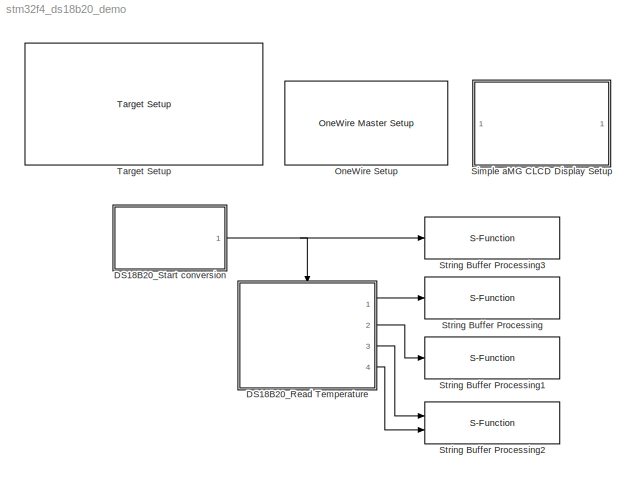
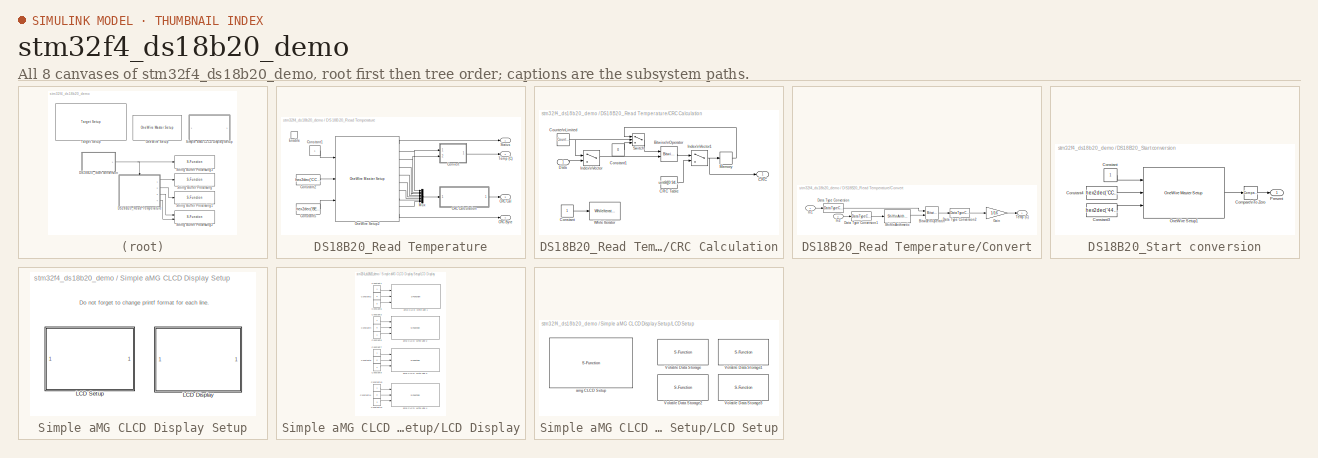
[diagram: thumbnail index - all 8 canvases of the model, root first then tree order]
MODEL stm32f4_ds18b20_demo
KIND model
CONFIG PreLoadFcn = waijung.modelPreload; % Required for working with Waijung Blockset. Do not remove.
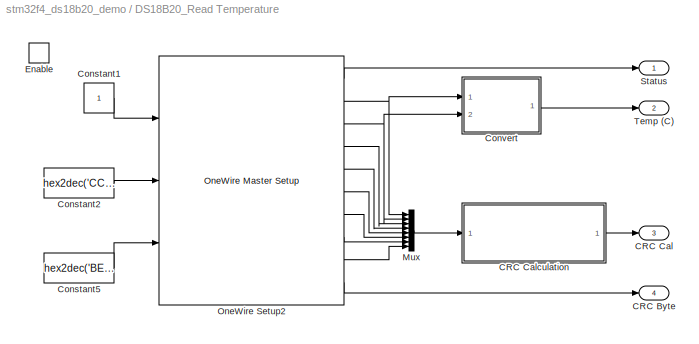
BLOCK [SubSystem] DS18B20_Read Temperature
  FunctionWithSeparateData = off
  MaskHideContents = off
  MinAlgLoopOccurrences = off
  Opaque = off
  Ports = [0, 4, 1]
  PropExecContextOutsideSubsystem = off
  RTWSystemCode = Auto
  RequestExecContextInheritance = off
BLOCK [Outport] DS18B20_Read Temperature/CRC Byte
  IconDisplay = Port number
  Port = 4
BLOCK [Outport] DS18B20_Read Temperature/CRC Cal
  IconDisplay = Port number
  Port = 3
BLOCK [SubSystem] DS18B20_Read Temperature/CRC Calculation
  FunctionWithSeparateData = off
  MaskHideContents = off
  MinAlgLoopOccurrences = off
  Opaque = off
  Ports = [1, 1]
  PropExecContextOutsideSubsystem = off
  RTWSystemCode = Auto
  RequestExecContextInheritance = off
  TreatAsAtomicUnit = on
BLOCK [Reference] DS18B20_Read Temperature/CRC Calculation/Bitwise\nOperator  REF=simulink/Logic and Bit\nOperations/Bitwise\nOperator
  BitMask = bin2dec('11011001')
  BitMaskRealWorld = Stored Integer
  NumInputPorts = 2
  Ports = [2, 1]
  SourceBlock = simulink/Logic and Bit\nOperations/Bitwise\nOperator
  SourceType = Bitwise Operator
  UseBitMask = off
  logicop = XOR
BLOCK [Outport] DS18B20_Read Temperature/CRC Calculation/CRC
  IconDisplay = Port number
  OutDataType = fixdt(1, 16)
  OutScaling = 2^0
BLOCK [Constant] DS18B20_Read Temperature/CRC Calculation/CRC Table
  OutDataType = fixdt(1, 16)
  OutScaling = 2^0
  Value = uint8([0 94 188 226 97 63 221 131 194 156 126 32 163 253 31 65 157 195 33 127 252 162 64 30 95 1 227 189 62 96 130 220 35 125 159 193 66 28 254 160 225 191 93 3 128 222 60 98 190 224 2 92 223 129 99 61 124 34 192 158 29 67 161 255 70 24 250 164 39 121 155 197 132 218 56 102 229 187 89 7 219 133 103 57 186 228 6 88 25 71 165 251 120 38 196 154 101 59 217 135 4 90 184 230 167 249 27 69 198 152 122 3...<+522ch>
BLOCK [Constant] DS18B20_Read Temperature/CRC Calculation/Constant
  OutDataType = fixdt(1, 16)
  OutScaling = 2^0
BLOCK [Constant] DS18B20_Read Temperature/CRC Calculation/Constant1
  OutDataType = fixdt(1, 16)
  OutDataTypeMode = uint8
  OutDataTypeStr = uint8
  OutScaling = 2^0
  Value = 0
BLOCK [Reference] DS18B20_Read Temperature/CRC Calculation/Counter\nLimited  REF=simulink/Sources/Counter\nLimited
  FunctionWithSeparateData = off
  Ports = [0, 1]
  RTWMemSecDataConstants = Inherit from model
  RTWMemSecDataInternal = Inherit from model
  RTWMemSecDataParameters = Inherit from model
  RTWMemSecFuncExecute = Inherit from model
  RTWMemSecFuncInitTerm = Inherit from model
  ShowPortLabels = FromPortIcon
  SourceBlock = simulink/Sources/Counter\nLimited
  SourceType = Counter Limited
  SystemSampleTime = -1
  tsamp = -1
  uplimit = 7
BLOCK [Inport] DS18B20_Read Temperature/CRC Calculation/Data
  IconDisplay = Port number
  OutDataType = fixdt(1, 16)
  OutScaling = 2^0
BLOCK [MultiPortSwitch] DS18B20_Read Temperature/CRC Calculation/Index\nVector
  InputSameDT = off
  Inputs = 1
  OutDataType = fixdt(1, 16)
  OutScaling = 2^0
  Ports = [2, 1]
  SaturateOnIntegerOverflow = off
  zeroidx = on
BLOCK [MultiPortSwitch] DS18B20_Read Temperature/CRC Calculation/Index\nVector1
  InputSameDT = off
  Inputs = 1
  OutDataType = fixdt(1, 16)
  OutScaling = 2^0
  Ports = [2, 1]
  SaturateOnIntegerOverflow = off
  zeroidx = on
BLOCK [Memory] DS18B20_Read Temperature/CRC Calculation/Memory
  InheritSampleTime = on
  LinearizeMemory = on
BLOCK [Switch] DS18B20_Read Temperature/CRC Calculation/Switch
  Criteria = u2 ~= 0
  InputSameDT = off
  OutDataType = fixdt(1, 16)
  OutScaling = 2^0
  SaturateOnIntegerOverflow = off
BLOCK [WhileIterator] DS18B20_Read Temperature/CRC Calculation/While Iterator
  MaxIters = 8
  Ports = [1]
  WhileBlockType = do-while
BLOCK [Constant] DS18B20_Read Temperature/Constant1
  OutDataType = fixdt(1, 16)
  OutScaling = 2^0
BLOCK [Constant] DS18B20_Read Temperature/Constant2
  OutDataType = fixdt(1, 16)
  OutDataTypeMode = uint8
  OutDataTypeStr = uint8
  OutScaling = 2^0
  Value = hex2dec('CC')
BLOCK [Constant] DS18B20_Read Temperature/Constant5
  OutDataType = fixdt(1, 16)
  OutDataTypeMode = uint8
  OutDataTypeStr = uint8
  OutScaling = 2^0
  Value = hex2dec('BE')
BLOCK [SubSystem] DS18B20_Read Temperature/Convert
  FunctionWithSeparateData = off
  MaskHideContents = off
  MinAlgLoopOccurrences = off
  Opaque = off
  Ports = [2, 1]
  PropExecContextOutsideSubsystem = off
  RTWSystemCode = Auto
  RequestExecContextInheritance = off
BLOCK [Reference] DS18B20_Read Temperature/Convert/Bitwise\nOperator  REF=simulink/Logic and Bit\nOperations/Bitwise\nOperator
  BitMask = bin2dec('11011001')
  BitMaskRealWorld = Stored Integer
  NumInputPorts = 2
  Ports = [2, 1]
  SourceBlock = simulink/Logic and Bit\nOperations/Bitwise\nOperator
  SourceType = Bitwise Operator
  UseBitMask = off
  logicop = OR
BLOCK [DataTypeConversion] DS18B20_Read Temperature/Convert/Data Type Conversion
  OutDataType = fixdt(1, 16)
  OutDataTypeMode = uint16
  OutDataTypeStr = uint16
  OutScaling = 2^0
  RndMeth = Floor
  SaturateOnIntegerOverflow = off
BLOCK [DataTypeConversion] DS18B20_Read Temperature/Convert/Data Type Conversion1
  OutDataType = fixdt(1, 16)
  OutDataTypeMode = uint16
  OutDataTypeStr = uint16
  OutScaling = 2^0
  RndMeth = Floor
  SaturateOnIntegerOverflow = off
BLOCK [DataTypeConversion] DS18B20_Read Temperature/Convert/Data Type Conversion2
  OutDataType = fixdt(1, 16)
  OutDataTypeMode = int16
  OutDataTypeStr = int16
  OutScaling = 2^0
  RndMeth = Floor
  SaturateOnIntegerOverflow = off
BLOCK [Gain] DS18B20_Read Temperature/Convert/Gain
  Gain = 1/16
  OutDataType = fixdt(1, 16)
  OutDataTypeMode = single
  OutDataTypeStr = single
  OutScaling = 2^0
  ParamDataTypeStr = Inherit: Inherit via internal rule
  ParameterDataType = fixdt(1, 16)
  ParameterDataTypeMode = Inherit via internal rule
  ParameterScaling = 2^0
  SaturateOnIntegerOverflow = off
BLOCK [Inport] DS18B20_Read Temperature/Convert/In1
  IconDisplay = Port number
BLOCK [Inport] DS18B20_Read Temperature/Convert/In2
  IconDisplay = Port number
  Port = 2
BLOCK [Reference] DS18B20_Read Temperature/Convert/Shift\nArithmetic  REF=simulink/Logic and Bit\nOperations/Shift\nArithmetic
  FunctionWithSeparateData = off
  Ports = [1, 1]
  RTWMemSecDataConstants = Inherit from model
  RTWMemSecDataInternal = Inherit from model
  RTWMemSecDataParameters = Inherit from model
  RTWMemSecFuncExecute = Inherit from model
  RTWMemSecFuncInitTerm = Inherit from model
  ShowPortLabels = FromPortIcon
  SourceBlock = simulink/Logic and Bit\nOperations/Shift\nArithmetic
  SourceType = Shift Arithmetic
  SystemSampleTime = -1
  nBinPtShiftRight = 0
  nBitShiftRight = -8
BLOCK [Outport] DS18B20_Read Temperature/Convert/Temp (C)
  IconDisplay = Port number
BLOCK [EnablePort] DS18B20_Read Temperature/Enable
  Ports = []
BLOCK [Mux] DS18B20_Read Temperature/Mux
  DisplayOption = bar
  Inputs = 8
  Ports = [8, 1]
BLOCK [Reference] DS18B20_Read Temperature/OneWire Setup2  REF=waijung_onewirebus_lib/OneWire Master Setup
  Ports = [3, 10]
  Priority = 1
  SourceBlock = waijung_onewirebus_lib/OneWire Master Setup
  SourceType = waijung_onewirebus
  blockid = DS18B20_ReadTemperatureOneWireSetup2
  compat = 0
  conf = ReadWrite
  inputportlabel = {'BusReset' 'Wr0 (uint8)' 'Wr1 (uint8)'}
  inputporttype = [-1 3 3]
  inputportwidth = []
  lowtime = 6
  module = 1
  optionstring = [\"1\",\"Custom\",\"90\",\"10\",\"6\",\"9\",\"640\",\"640\",\"A\",\"8\"]
  outputportlabel = {'Status' '(uint8) Rd0' '(uint8) Rd1' '(uint8) Rd2' '(uint8) Rd3' '(uint8) Rd4' '(uint8) Rd5' '(uint8) Rd6' '(uint8) Rd7' '(uint8) Rd8'}
  outputporttype = [3 3 3 3 3 3 3 3 3 3]
  outputportwidth = []
  pin = 8
  port = A
  portpinstr = 0
  readcount = 9
  readsample = 9
  resethigh = 640
  resetlow = 640
  sampletime = 0.2
  speed = Custom
  timerecovery = 10
  timeslot = 90
  transfer = Blocking
  writecount = 2
BLOCK [Outport] DS18B20_Read Temperature/Status
  IconDisplay = Port number
BLOCK [Outport] DS18B20_Read Temperature/Temp (C)
  IconDisplay = Port number
  Port = 2
BLOCK [SubSystem] DS18B20_Start conversion
  FunctionWithSeparateData = off
  MaskHideContents = off
  MinAlgLoopOccurrences = off
  Opaque = off
  Ports = [0, 1]
  PropExecContextOutsideSubsystem = off
  RTWSystemCode = Auto
  RequestExecContextInheritance = off
BLOCK [Reference] DS18B20_Start conversion/Compare\nTo Zero  REF=simulink/Logic and Bit\nOperations/Compare\nTo Zero
  FunctionWithSeparateData = off
  LogicOutDataTypeMode = uint8
  Ports = [1, 1]
  RTWMemSecDataConstants = Inherit from model
  RTWMemSecDataInternal = Inherit from model
  RTWMemSecDataParameters = Inherit from model
  RTWMemSecFuncExecute = Inherit from model
  RTWMemSecFuncInitTerm = Inherit from model
  ShowPortLabels = FromPortIcon
  SourceBlock = simulink/Logic and Bit\nOperations/Compare\nTo Zero
  SourceType = Compare To Zero
  SystemSampleTime = -1
  ZeroCross = off
  relop = ==
BLOCK [Constant] DS18B20_Start conversion/Constant
  OutDataType = fixdt(1, 16)
  OutScaling = 2^0
BLOCK [Constant] DS18B20_Start conversion/Constant3
  OutDataType = fixdt(1, 16)
  OutDataTypeMode = uint8
  OutDataTypeStr = uint8
  OutScaling = 2^0
  Value = hex2dec('44')
BLOCK [Constant] DS18B20_Start conversion/Constant4
  OutDataType = fixdt(1, 16)
  OutDataTypeMode = uint8
  OutDataTypeStr = uint8
  OutScaling = 2^0
  Value = hex2dec('CC')
BLOCK [Reference] DS18B20_Start conversion/OneWire Setup1  REF=waijung_onewirebus_lib/OneWire Master Setup
  Ports = [3, 1]
  Priority = 0
  SourceBlock = waijung_onewirebus_lib/OneWire Master Setup
  SourceType = waijung_onewirebus
  blockid = DS18B20_StartconversionOneWireSetup1
  compat = 0
  conf = ReadWrite
  inputportlabel = {'BusReset' 'Wr0 (uint8)' 'Wr1 (uint8)'}
  inputporttype = [-1 3 3]
  inputportwidth = []
  lowtime = 6
  module = 1
  optionstring = [\"1\",\"Custom\",\"90\",\"10\",\"6\",\"9\",\"640\",\"640\",\"A\",\"8\"]
  outputportlabel = {'Status'}
  outputporttype = [3]
  outputportwidth = []
  pin = 8
  port = A
  portpinstr = 0
  readcount = 0
  readsample = 9
  resethigh = 640
  resetlow = 640
  sampletime = 0.2
  speed = Custom
  timerecovery = 10
  timeslot = 90
  transfer = Blocking
  writecount = 2
BLOCK [Outport] DS18B20_Start conversion/Present
  IconDisplay = Port number
BLOCK [Reference] OneWire Setup  REF=waijung_onewirebus_lib/OneWire Master Setup
  Ports = []
  SourceBlock = waijung_onewirebus_lib/OneWire Master Setup
  SourceType = waijung_onewirebus
  blockid = OneWireSetup
  compat = 0
  conf = Setup
  inputportlabel = {}
  inputporttype = []
  inputportwidth = []
  lowtime = 6
  module = 1
  optionstring = [\"1\",\"Custom\",\"60\",\"10\",\"6\",\"9\",\"600\",\"600\",\"A\",\"8\"]
  outputportlabel = {}
  outputporttype = []
  outputportwidth = []
  pin = 8
  port = A
  portpinstr = 0
  readcount = 2
  readsample = 9
  resethigh = 600
  resetlow = 600
  sampletime = inf
  speed = Custom
  timerecovery = 10
  timeslot = 60
  transfer = Blocking
  writecount = 2
BLOCK [SubSystem] Simple aMG CLCD Display Setup
  CopyFcn = set_param(gcbh, 'LinkStatus', 'none')
  FunctionWithSeparateData = off
  MaskHideContents = off
  MinAlgLoopOccurrences = off
  Opaque = off
  Ports = []
  PropExecContextOutsideSubsystem = off
  RTWSystemCode = Auto
  RequestExecContextInheritance = off
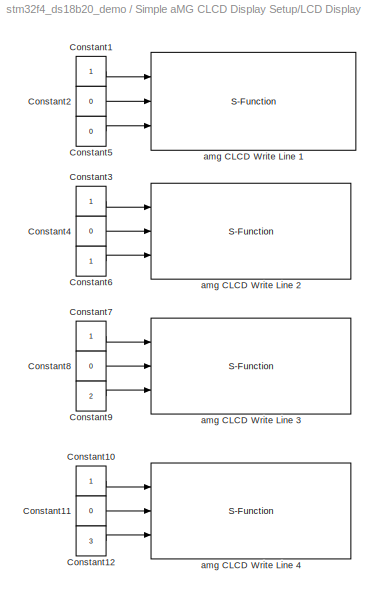
BLOCK [SubSystem] Simple aMG CLCD Display Setup/LCD Display
  FunctionWithSeparateData = off
  MaskHideContents = off
  MinAlgLoopOccurrences = off
  Opaque = off
  Ports = []
  PropExecContextOutsideSubsystem = off
  RTWSystemCode = Auto
  RequestExecContextInheritance = off
BLOCK [Constant] Simple aMG CLCD Display Setup/LCD Display/Constant1
  OutDataType = fixdt(1, 16)
  OutDataTypeMode = uint8
  OutDataTypeStr = uint8
  OutScaling = 2^0
BLOCK [Constant] Simple aMG CLCD Display Setup/LCD Display/Constant10
  OutDataType = fixdt(1, 16)
  OutDataTypeMode = uint8
  OutDataTypeStr = uint8
  OutScaling = 2^0
BLOCK [Constant] Simple aMG CLCD Display Setup/LCD Display/Constant11
  OutDataType = fixdt(1, 16)
  OutDataTypeMode = uint8
  OutDataTypeStr = uint8
  OutScaling = 2^0
  Value = 0
BLOCK [Constant] Simple aMG CLCD Display Setup/LCD Display/Constant12
  OutDataType = fixdt(1, 16)
  OutDataTypeMode = uint8
  OutDataTypeStr = uint8
  OutScaling = 2^0
  Value = 3
BLOCK [Constant] Simple aMG CLCD Display Setup/LCD Display/Constant2
  OutDataType = fixdt(1, 16)
  OutDataTypeMode = uint8
  OutDataTypeStr = uint8
  OutScaling = 2^0
  Value = 0
BLOCK [Constant] Simple aMG CLCD Display Setup/LCD Display/Constant3
  OutDataType = fixdt(1, 16)
  OutDataTypeMode = uint8
  OutDataTypeStr = uint8
  OutScaling = 2^0
BLOCK [Constant] Simple aMG CLCD Display Setup/LCD Display/Constant4
  OutDataType = fixdt(1, 16)
  OutDataTypeMode = uint8
  OutDataTypeStr = uint8
  OutScaling = 2^0
  Value = 0
BLOCK [Constant] Simple aMG CLCD Display Setup/LCD Display/Constant5
  OutDataType = fixdt(1, 16)
  OutDataTypeMode = uint8
  OutDataTypeStr = uint8
  OutScaling = 2^0
  Value = 0
BLOCK [Constant] Simple aMG CLCD Display Setup/LCD Display/Constant6
  OutDataType = fixdt(1, 16)
  OutDataTypeMode = uint8
  OutDataTypeStr = uint8
  OutScaling = 2^0
BLOCK [Constant] Simple aMG CLCD Display Setup/LCD Display/Constant7
  OutDataType = fixdt(1, 16)
  OutDataTypeMode = uint8
  OutDataTypeStr = uint8
  OutScaling = 2^0
BLOCK [Constant] Simple aMG CLCD Display Setup/LCD Display/Constant8
  OutDataType = fixdt(1, 16)
  OutDataTypeMode = uint8
  OutDataTypeStr = uint8
  OutScaling = 2^0
  Value = 0
BLOCK [Constant] Simple aMG CLCD Display Setup/LCD Display/Constant9
  OutDataType = fixdt(1, 16)
  OutDataTypeMode = uint8
  OutDataTypeStr = uint8
  OutScaling = 2^0
  Value = 2
BLOCK [S-Function] Simple aMG CLCD Display Setup/LCD Display/amg CLCD Write Line 1
  EnableBusSupport = off
  FunctionName = amg_clcd
  MaskCallbackString = amg_clcd_callback('configuration');||||||||||||||||amg_clcd_callback('usestringbuffer');||amg_clcd_callback('varname');|||amg_clcd_callback('confstr');|amg_clcd_callback('sampletime');|amg_clcd_callback('sampletimestr');|amg_clcd_callback('blockid');  <repeated x5 — deduplicated; at blocks: amg CLCD Write Line 1, amg CLCD Write Line 2, amg CLCD Write Line 3, amg CLCD Write Line 4, amg CLCD Setup>
  MaskDescription = Note for cmd:\n1 - Clear LCD Line before write.\n0 or otherwise - Write into LCD Line with existing data.\n
  MaskDisplay = text(0.5, 0.5, 'Module: CLCD1 (Write)\\nBuffer: Line1\\nTs (sec): 0.05','ver','middle','hor','center');port_label('input', 1,'cmd');port_label('input', 2,'xpos');port_label('input', 3,'ypos');
  MaskEnableString = on,on,on,off,off,on,on,on,on,on,on,on,on,on,on,on,on,on,off,off,off,on,on,on,on
  MaskHelp = web(fullfile(waijungdocroot,'amg_clcd_write.htm'), '-browser')
  MaskIconFrame = on
  MaskIconOpaque = on
  MaskIconRotate = none
  MaskIconUnits = normalized
  MaskInitialization = amg_clcd_callback('init');
  MaskPortRotate = default
  MaskPromptString = Configuration:|Module:|LCD model:|Interface:|Number of lines:|Number of columns:|GPIO Pull-Up/Down:|GPIO control port:|GPIO control pin, RS:|GPIO control pin, EN:|GPIO control pin, RW:|GPIO data D[7:4] port|GPIO data pin, D4:|GPIO data pin, D5:|GPIO data pin, D6:|GPIO data pin, D7:|Use string buffer|String buffer|Variable name|Input type array|Output type array|Configuration string|Sample time (se...<+47ch>  <repeated x4 — deduplicated; at blocks: amg CLCD Write Line 1, amg CLCD Write Line 2, amg CLCD Write Line 3, amg CLCD Write Line 4>
  MaskSelfModifiable = on
  MaskStyleString = popup(Setup|Transaction),popup(1|2|3|4),popup(amg CLCD Std),popup(4-bits),edit,edit,popup(Push-pull|Open-drain),popup(A|B|C|D|E|F|G|H|I),popup(0|1|2|3|4|5|6|7|8|9|10|11|12|13|14|15),popup(0|1|2|3|4|5|6|7|8|9|10|11|12|13|14|15),popup(0|1|2|3|4|5|6|7|8|9|10|11|12|13|14|15),popup(A|B|C|D|E|F|G|H|I),popup(0|1|2|3|4|5|6|7|8|9|10|11|12|13|14|15),popup(0|1|2|3|4|5|6|7|8|9|10|11|12|13|14|15),popup(0|1|2|3...<+151ch>  <repeated x5 — deduplicated; at blocks: amg CLCD Write Line 1, amg CLCD Write Line 2, amg CLCD Write Line 3, amg CLCD Write Line 4, amg CLCD Setup>
  MaskTabNameString = ,,,,,,,,,,,,,,,,,,,,,,,,
  MaskToolTipString = on,on,on,on,on,on,on,on,on,on,on,on,on,on,on,on,on,on,on,on,on,on,on,on,on
  MaskTunableValueString = off,off,off,off,off,off,off,off,off,off,off,off,off,off,off,off,off,off,off,off,off,off,off,off,off
  MaskType = amg_clcd
  MaskValueString = Transaction|1|amg CLCD Std|4-bits|4|20|Push-pull|E|15|11|13|A|7|5|3|1|on|Line1|SimpleaMGCLCDDisplaySetupLCDSetupVolatileDataStorage_Line1|[3 -1 -1 -1]|[0]|[\"4\",\"4\",\"20\",\"PP\",\"E\",\"15\",\"11\",\"13\",\"\",\"A\",\"\",\"\",\"\",\"\",\"7\",\"5\",\"3\",\"1\",\"1\",\"SimpleaMGCLCDDisplaySetupLCDSetupVolatileDataStorage_Line1\",\"1\",\"0\",\"0\",\"0\",\"1\",\"0\",\"0\",\"0\",\"0\",\"stm32f4\"]|...<+62ch>
  MaskVarAliasString = ,,,,,,,,,,,,,,,,,,,,,,,,
  MaskVariables = configuration=&1;module=&2;model=&3;interface=&4;linecount=@5;columncount=@6;gpiotype=&7;controlport=&8;control_rs=&9;control_en=&10;control_rw=&11;dataport=&12;data0=&13;data1=&14;data2=&15;data3=&16;usestringbuffer=@17;stringbuffer=&18;varname=&19;inputtypearray=@20;outputtypearray=@21;confstr=&22;sampletime=@23;sampletimestr=&24;blockid=&25;  <repeated x4 — deduplicated; at blocks: amg CLCD Write Line 1, amg CLCD Write Line 2, amg CLCD Write Line 3, amg CLCD Write Line 4>
  MaskVisibilityString = off,on,off,off,off,off,off,off,off,off,off,off,off,off,off,off,on,on,off,off,off,off,on,off,off
  Parameters = module,configuration,inputtypearray,outputtypearray,confstr,sampletime,sampletimestr,blockid
  Ports = [3]
BLOCK [S-Function] Simple aMG CLCD Display Setup/LCD Display/amg CLCD Write Line 2
  EnableBusSupport = off
  FunctionName = amg_clcd
  MaskDescription = Note for cmd:\n1 - Clear LCD Line before write.\n0 or otherwise - Write into LCD Line with existing data.\n
  MaskDisplay = text(0.5, 0.5, 'Module: CLCD1 (Write)\\nBuffer: Line2\\nTs (sec): 0.05','ver','middle','hor','center');port_label('input', 1,'cmd');port_label('input', 2,'xpos');port_label('input', 3,'ypos');
  MaskEnableString = on,on,on,off,off,on,on,on,on,on,on,on,on,on,on,on,on,on,off,off,off,on,on,on,on
  MaskHelp = web(fullfile(waijungdocroot,'amg_clcd_write.htm'), '-browser')
  MaskIconFrame = on
  MaskIconOpaque = on
  MaskIconRotate = none
  MaskIconUnits = normalized
  MaskInitialization = amg_clcd_callback('init');
  MaskPortRotate = default
  MaskSelfModifiable = on
  MaskTabNameString = ,,,,,,,,,,,,,,,,,,,,,,,,
  MaskToolTipString = on,on,on,on,on,on,on,on,on,on,on,on,on,on,on,on,on,on,on,on,on,on,on,on,on
  MaskTunableValueString = off,off,off,off,off,off,off,off,off,off,off,off,off,off,off,off,off,off,off,off,off,off,off,off,off
  MaskType = amg_clcd
  MaskValueString = Transaction|1|amg CLCD Std|4-bits|4|20|Push-pull|E|15|11|13|A|7|5|3|1|on|Line2|SimpleaMGCLCDDisplaySetupLCDSetupVolatileDataStorage1_Line2|[3 -1 -1 -1]|[0]|[\"4\",\"4\",\"20\",\"PP\",\"E\",\"15\",\"11\",\"13\",\"\",\"A\",\"\",\"\",\"\",\"\",\"7\",\"5\",\"3\",\"1\",\"1\",\"SimpleaMGCLCDDisplaySetupLCDSetupVolatileDataStorage1_Line2\",\"1\",\"0\",\"0\",\"0\",\"1\",\"0\",\"0\",\"0\",\"0\",\"stm32f4\"...<+64ch>
  MaskVarAliasString = ,,,,,,,,,,,,,,,,,,,,,,,,
  MaskVisibilityString = off,on,off,off,off,off,off,off,off,off,off,off,off,off,off,off,on,on,off,off,off,off,on,off,off
  Parameters = module,configuration,inputtypearray,outputtypearray,confstr,sampletime,sampletimestr,blockid
  Ports = [3]
BLOCK [S-Function] Simple aMG CLCD Display Setup/LCD Display/amg CLCD Write Line 3
  EnableBusSupport = off
  FunctionName = amg_clcd
  MaskDescription = Note for cmd:\n1 - Clear LCD Line before write.\n0 or otherwise - Write into LCD Line with existing data.\n
  MaskDisplay = text(0.5, 0.5, 'Module: CLCD1 (Write)\\nBuffer: Line3\\nTs (sec): 0.05','ver','middle','hor','center');port_label('input', 1,'cmd');port_label('input', 2,'xpos');port_label('input', 3,'ypos');
  MaskEnableString = on,on,on,off,off,on,on,on,on,on,on,on,on,on,on,on,on,on,off,off,off,on,on,on,on
  MaskHelp = web(fullfile(waijungdocroot,'amg_clcd_write.htm'), '-browser')
  MaskIconFrame = on
  MaskIconOpaque = on
  MaskIconRotate = none
  MaskIconUnits = normalized
  MaskInitialization = amg_clcd_callback('init');
  MaskPortRotate = default
  MaskSelfModifiable = on
  MaskTabNameString = ,,,,,,,,,,,,,,,,,,,,,,,,
  MaskToolTipString = on,on,on,on,on,on,on,on,on,on,on,on,on,on,on,on,on,on,on,on,on,on,on,on,on
  MaskTunableValueString = off,off,off,off,off,off,off,off,off,off,off,off,off,off,off,off,off,off,off,off,off,off,off,off,off
  MaskType = amg_clcd
  MaskValueString = Transaction|1|amg CLCD Std|4-bits|4|20|Push-pull|E|15|11|13|A|7|5|3|1|on|Line3|SimpleaMGCLCDDisplaySetupLCDSetupVolatileDataStorage2_Line3|[3 -1 -1 -1]|[0]|[\"4\",\"4\",\"20\",\"PP\",\"E\",\"15\",\"11\",\"13\",\"\",\"A\",\"\",\"\",\"\",\"\",\"7\",\"5\",\"3\",\"1\",\"1\",\"SimpleaMGCLCDDisplaySetupLCDSetupVolatileDataStorage2_Line3\",\"1\",\"0\",\"0\",\"0\",\"1\",\"0\",\"0\",\"0\",\"0\",\"stm32f4\"...<+64ch>
  MaskVarAliasString = ,,,,,,,,,,,,,,,,,,,,,,,,
  MaskVisibilityString = off,on,off,off,off,off,off,off,off,off,off,off,off,off,off,off,on,on,off,off,off,off,on,off,off
  Parameters = module,configuration,inputtypearray,outputtypearray,confstr,sampletime,sampletimestr,blockid
  Ports = [3]
BLOCK [S-Function] Simple aMG CLCD Display Setup/LCD Display/amg CLCD Write Line 4
  EnableBusSupport = off
  FunctionName = amg_clcd
  MaskDescription = Note for cmd:\n1 - Clear LCD Line before write.\n0 or otherwise - Write into LCD Line with existing data.\n
  MaskDisplay = text(0.5, 0.5, 'Module: CLCD1 (Write)\\nBuffer: Line4\\nTs (sec): 0.05','ver','middle','hor','center');port_label('input', 1,'cmd');port_label('input', 2,'xpos');port_label('input', 3,'ypos');
  MaskEnableString = on,on,on,off,off,on,on,on,on,on,on,on,on,on,on,on,on,on,off,off,off,on,on,on,on
  MaskHelp = web(fullfile(waijungdocroot,'amg_clcd_write.htm'), '-browser')
  MaskIconFrame = on
  MaskIconOpaque = on
  MaskIconRotate = none
  MaskIconUnits = normalized
  MaskInitialization = amg_clcd_callback('init');
  MaskPortRotate = default
  MaskSelfModifiable = on
  MaskTabNameString = ,,,,,,,,,,,,,,,,,,,,,,,,
  MaskToolTipString = on,on,on,on,on,on,on,on,on,on,on,on,on,on,on,on,on,on,on,on,on,on,on,on,on
  MaskTunableValueString = off,off,off,off,off,off,off,off,off,off,off,off,off,off,off,off,off,off,off,off,off,off,off,off,off
  MaskType = amg_clcd
  MaskValueString = Transaction|1|amg CLCD Std|4-bits|4|20|Push-pull|E|15|11|13|A|7|5|3|1|on|Line4|SimpleaMGCLCDDisplaySetupLCDSetupVolatileDataStorage3_Line4|[3 -1 -1 -1]|[0]|[\"4\",\"4\",\"20\",\"PP\",\"E\",\"15\",\"11\",\"13\",\"\",\"A\",\"\",\"\",\"\",\"\",\"7\",\"5\",\"3\",\"1\",\"1\",\"SimpleaMGCLCDDisplaySetupLCDSetupVolatileDataStorage3_Line4\",\"1\",\"0\",\"0\",\"0\",\"1\",\"0\",\"0\",\"0\",\"0\",\"stm32f4\"...<+64ch>
  MaskVarAliasString = ,,,,,,,,,,,,,,,,,,,,,,,,
  MaskVisibilityString = off,on,off,off,off,off,off,off,off,off,off,off,off,off,off,off,on,on,off,off,off,off,on,off,off
  Parameters = module,configuration,inputtypearray,outputtypearray,confstr,sampletime,sampletimestr,blockid
  Ports = [3]
BLOCK [SubSystem] Simple aMG CLCD Display Setup/LCD Setup
  FunctionWithSeparateData = off
  MaskHideContents = off
  MinAlgLoopOccurrences = off
  Opaque = off
  Ports = []
  PropExecContextOutsideSubsystem = off
  RTWSystemCode = Auto
  RequestExecContextInheritance = off
BLOCK [S-Function] Simple aMG CLCD Display Setup/LCD Setup/Volatile Data Storage
  EnableBusSupport = off
  FunctionName = waijung_vdata_storage
  MaskCallbackString = waijung_vdata_storage_callback('storagetype');|waijung_vdata_storage_callback('storagename');|waijung_vdata_storage_callback('initval');|waijung_vdata_storage_callback('varname');||waijung_vdata_storage_callback('initvalstring');|waijung_vdata_storage_callback('webintegration');|waijung_vdata_storage_callback('weboutputformat');|||waijung_vdata_storage_callback('sampletime');|waijung_vdata_storage...<+71ch>  <repeated x4 — deduplicated; at blocks: Volatile Data Storage, Volatile Data Storage1, Volatile Data Storage2, Volatile Data Storage3>
  MaskDescription = This block implements a volatile Data Storage.\n\nWeb CGI varset/varget integratiopn:\nEnable - In webserver application, allow remote access via http.\nDisable - Variable is use in local only.  <repeated x4 — deduplicated; at blocks: Volatile Data Storage, Volatile Data Storage1, Volatile Data Storage2, Volatile Data Storage3>
  MaskDisplay = text(0.5, 0.5, 'Name: Line1\\nType: string','ver','middle','hor','center')
  MaskEnableString = on,on,on,off,on,on,on,on,off,on,on,off,off,on
  MaskHelp = web(fullfile(waijungdocroot,'Volatile_Data_Storage.htm'))
  MaskIconFrame = on
  MaskIconOpaque = on
  MaskIconRotate = none
  MaskIconUnits = normalized
  MaskInitialization = waijung_vdata_storage_callback('init');
  MaskPortRotate = default
  MaskPromptString = Storage Type|Storage Name (must be a valid variable name)|Initial value (Apply at Power on Reset only)|Variable name|Size (bytes)|Initial value (Apply at Power on Reset only)|Web CGI varget/varset integration|Web CGI varget output format|Web CGI varset callback|Last selected Storage Type|Sample time (sec)|Compiled sample time (sec) in string|BlockID|Type string  <repeated x4 — deduplicated; at blocks: Volatile Data Storage, Volatile Data Storage1, Volatile Data Storage2, Volatile Data Storage3>
  MaskSelfModifiable = on
  MaskStyleString = popup(double|single|uint32|int32|uint16|int16|uint8|int8|string),edit,edit,edit,edit,edit,popup(Disable|ReadOnly|Write/ Read|ReadOnly with KeyValuePair|Write/ Read with KeyValuePair),edit,edit,popup(double|single|uint32|int32|uint16|int16|uint8|int8|string),edit,edit,edit,edit  <repeated x4 — deduplicated; at blocks: Volatile Data Storage, Volatile Data Storage1, Volatile Data Storage2, Volatile Data Storage3>
  MaskTabNameString = ,,,,,,,,,,,,,
  MaskToolTipString = on,on,on,on,on,on,on,on,on,on,on,on,on,on
  MaskTunableValueString = off,off,off,off,off,off,off,off,off,off,off,off,off,off
  MaskType = waijung_vdata_storage
  MaskValueString = string|Line1|0|SimpleaMGCLCDDisplaySetupLCDSetupVolatileDataStorage_Line1|64|''|Disable|'%s'|(void*)0|string|-1|0.01|SimpleaMGCLCDDisplaySetupLCDSetupVolatileDataStorage|char
  MaskVarAliasString = ,,,,,,,,,,,,,
  MaskVariables = storagetype=&1;storagename=&2;initval=@3;varname=&4;buffersize=@5;initvalstring=@6;webintegration=&7;weboutputformat=&8;webcgicallback=&9;laststoragetype=&10;sampletime=@11;sampletimestr=&12;blockid=&13;storagetypestr=&14;  <repeated x4 — deduplicated; at blocks: Volatile Data Storage, Volatile Data Storage1, Volatile Data Storage2, Volatile Data Storage3>
  MaskVisibilityString = on,on,off,off,on,on,on,off,off,off,on,off,off,off
  Parameters = storagetype,storagename,initval,varname,buffersize,initvalstring,sampletime,sampletimestr,blockid,storagetypestr
  Ports = []
BLOCK [S-Function] Simple aMG CLCD Display Setup/LCD Setup/Volatile Data Storage1
  EnableBusSupport = off
  FunctionName = waijung_vdata_storage
  MaskDisplay = text(0.5, 0.5, 'Name: Line2\\nType: string','ver','middle','hor','center')
  MaskEnableString = on,on,on,off,on,on,on,on,off,on,on,off,off,on
  MaskHelp = web(fullfile(waijungdocroot,'Volatile_Data_Storage.htm'))
  MaskIconFrame = on
  MaskIconOpaque = on
  MaskIconRotate = none
  MaskIconUnits = normalized
  MaskInitialization = waijung_vdata_storage_callback('init');
  MaskPortRotate = default
  MaskSelfModifiable = on
  MaskTabNameString = ,,,,,,,,,,,,,
  MaskToolTipString = on,on,on,on,on,on,on,on,on,on,on,on,on,on
  MaskTunableValueString = off,off,off,off,off,off,off,off,off,off,off,off,off,off
  MaskType = waijung_vdata_storage
  MaskValueString = string|Line2|0|SimpleaMGCLCDDisplaySetupLCDSetupVolatileDataStorage1_Line2|64|''|Disable|'%s'|(void*)0|string|-1|0.01|SimpleaMGCLCDDisplaySetupLCDSetupVolatileDataStorage1|char
  MaskVarAliasString = ,,,,,,,,,,,,,
  MaskVisibilityString = on,on,off,off,on,on,on,off,off,off,on,off,off,off
  Parameters = storagetype,storagename,initval,varname,buffersize,initvalstring,sampletime,sampletimestr,blockid,storagetypestr
  Ports = []
BLOCK [S-Function] Simple aMG CLCD Display Setup/LCD Setup/Volatile Data Storage2
  EnableBusSupport = off
  FunctionName = waijung_vdata_storage
  MaskDisplay = text(0.5, 0.5, 'Name: Line3\\nType: string','ver','middle','hor','center')
  MaskEnableString = on,on,on,off,on,on,on,on,off,on,on,off,off,on
  MaskHelp = web(fullfile(waijungdocroot,'Volatile_Data_Storage.htm'))
  MaskIconFrame = on
  MaskIconOpaque = on
  MaskIconRotate = none
  MaskIconUnits = normalized
  MaskInitialization = waijung_vdata_storage_callback('init');
  MaskPortRotate = default
  MaskSelfModifiable = on
  MaskTabNameString = ,,,,,,,,,,,,,
  MaskToolTipString = on,on,on,on,on,on,on,on,on,on,on,on,on,on
  MaskTunableValueString = off,off,off,off,off,off,off,off,off,off,off,off,off,off
  MaskType = waijung_vdata_storage
  MaskValueString = string|Line3|0|SimpleaMGCLCDDisplaySetupLCDSetupVolatileDataStorage2_Line3|64|''|Disable|'%s'|(void*)0|string|-1|0.01|SimpleaMGCLCDDisplaySetupLCDSetupVolatileDataStorage2|char
  MaskVarAliasString = ,,,,,,,,,,,,,
  MaskVisibilityString = on,on,off,off,on,on,on,off,off,off,on,off,off,off
  Parameters = storagetype,storagename,initval,varname,buffersize,initvalstring,sampletime,sampletimestr,blockid,storagetypestr
  Ports = []
BLOCK [S-Function] Simple aMG CLCD Display Setup/LCD Setup/Volatile Data Storage3
  EnableBusSupport = off
  FunctionName = waijung_vdata_storage
  MaskDisplay = text(0.5, 0.5, 'Name: Line4\\nType: string','ver','middle','hor','center')
  MaskEnableString = on,on,on,off,on,on,on,on,off,on,on,off,off,on
  MaskHelp = web(fullfile(waijungdocroot,'Volatile_Data_Storage.htm'))
  MaskIconFrame = on
  MaskIconOpaque = on
  MaskIconRotate = none
  MaskIconUnits = normalized
  MaskInitialization = waijung_vdata_storage_callback('init');
  MaskPortRotate = default
  MaskSelfModifiable = on
  MaskTabNameString = ,,,,,,,,,,,,,
  MaskToolTipString = on,on,on,on,on,on,on,on,on,on,on,on,on,on
  MaskTunableValueString = off,off,off,off,off,off,off,off,off,off,off,off,off,off
  MaskType = waijung_vdata_storage
  MaskValueString = string|Line4|0|SimpleaMGCLCDDisplaySetupLCDSetupVolatileDataStorage3_Line4|64|''|Disable|'%s'|(void*)0|string|-1|0.01|SimpleaMGCLCDDisplaySetupLCDSetupVolatileDataStorage3|char
  MaskVarAliasString = ,,,,,,,,,,,,,
  MaskVisibilityString = on,on,off,off,on,on,on,off,off,off,on,off,off,off
  Parameters = storagetype,storagename,initval,varname,buffersize,initvalstring,sampletime,sampletimestr,blockid,storagetypestr
  Ports = []
BLOCK [S-Function] Simple aMG CLCD Display Setup/LCD Setup/amg CLCD Setup
  EnableBusSupport = off
  FunctionName = amg_clcd
  MaskDisplay = text(0.5, 0.5, 'Module: CLCD1 (Setup)\\nInterface: 4-bits\\nCntrl: E7/E8/E9\\nD[7:4]: E12/E13/E14/E15\\nTs (sec): 0.01','ver','middle','hor','center');
  MaskEnableString = on,on,on,off,off,on,on,on,on,on,on,on,on,on,on,on,on,on,off,off,off,on,on,on,on
  MaskHelp = web(fullfile(waijungdocroot,'amg_clcd_setup.htm'), '-browser')
  MaskIconFrame = on
  MaskIconOpaque = on
  MaskIconRotate = none
  MaskIconUnits = normalized
  MaskInitialization = amg_clcd_callback('init');
  MaskPortRotate = default
  MaskPromptString = Configuration:|Module:|LCD model:|Interface:|Number of lines:|Number of columns:|GPIO Pull-Up/Down:|GPIO control port:|GPIO control pin, RS:|GPIO control pin, RW:|GPIO control pin, EN:|GPIO data D[7:4] port|GPIO data pin, D4:|GPIO data pin, D5:|GPIO data pin, D6:|GPIO data pin, D7:|Use string buffer|String buffer|Variable name|Input type array|Output type array|Configuration string|Sample time (se...<+47ch>
  MaskSelfModifiable = on
  MaskTabNameString = ,,,,,,,,,,,,,,,,,,,,,,,,
  MaskToolTipString = on,on,on,on,on,on,on,on,on,on,on,on,on,on,on,on,on,on,on,on,on,on,on,on,on
  MaskTunableValueString = off,off,off,off,off,off,off,off,off,off,off,off,off,off,off,off,off,off,off,off,off,off,off,off,off
  MaskType = amg_clcd
  MaskValueString = Setup|1|amg CLCD Std|4-bits|4|16|Push-pull|E|7|8|9|E|12|13|14|15|off|Line2|clcd_demo_4linesLCDSetupVolatileDataStorage3_Line2|[0]|[0]|[\"4\",\"4\",\"16\",\"PP\",\"E\",\"7\",\"9\",\"8\",\"\",\"E\",\"\",\"\",\"\",\"\",\"12\",\"13\",\"14\",\"15\",\"0\",\"\",\"0\",\"0\",\"0\",\"0\",\"1\",\"0\",\"0\",\"0\",\"0\",\"stm32f4\"]|-1|0.01|SimpleaMGCLCDDisplaySetupLCDSetupamgCLCDSetup
  MaskVarAliasString = ,,,,,,,,,,,,,,,,,,,,,,,,
  MaskVariables = configuration=&1;module=&2;model=&3;interface=&4;linecount=@5;columncount=@6;gpiotype=&7;controlport=&8;control_rs=&9;control_rw=&10;control_en=&11;dataport=&12;data0=&13;data1=&14;data2=&15;data3=&16;usestringbuffer=@17;stringbuffer=&18;varname=&19;inputtypearray=@20;outputtypearray=@21;confstr=&22;sampletime=@23;sampletimestr=&24;blockid=&25;
  MaskVisibilityString = off,on,off,on,off,on,on,on,on,on,on,on,on,on,on,on,off,off,off,off,off,off,off,off,off
  Parameters = module,configuration,inputtypearray,outputtypearray,confstr,sampletime,sampletimestr,blockid
  Ports = []
BLOCK [S-Function] String Buffer Processing
  EnableBusSupport = off
  FunctionName = waijung_stringbuffer_processing
  MaskCallbackString = waijung_stringbuffer_processing_callback('configuration');||waijung_stringbuffer_processing_callback('sformat');|waijung_stringbuffer_processing_callback('enableoutput');||||||waijung_stringbuffer_processing_callback('sampletime');|waijung_stringbuffer_processing_callback('sampletimestr');|waijung_stringbuffer_processing_callback('blockid');  <repeated x4 — deduplicated; at blocks: String Buffer Processing, String Buffer Processing1, String Buffer Processing2, String Buffer Processing3>
  MaskDescription = This block implements string processing, sprintf/ sscanf command.\nSupported format:\n%u, %i, %o, %x: uint32\n%d: int32\n%e, %g, %f: single\n%c: int8\n\nStatus:\n 0: Failed.\n Non-zero: Success.  <repeated x4 — deduplicated; at blocks: String Buffer Processing, String Buffer Processing1, String Buffer Processing2, String Buffer Processing3>
  MaskDisplay = text(0.5, 0.5, '[ sprintf ]\\nBuffer: Line2\\nTs (sec): 0.2','ver','middle','hor','center');port_label('input', 1,'%d');
  MaskEnableString = on,on,on,on,off,on,on,on,on,on,off,off
  MaskHelp = web(fullfile(waijungdocroot,'String_Buffer_Processing.htm'))
  MaskIconFrame = on
  MaskIconOpaque = on
  MaskIconRotate = none
  MaskIconUnits = normalized
  MaskInitialization = waijung_stringbuffer_processing_callback('init');
  MaskPortRotate = default
  MaskPromptString = Function|String buffer|Printf format|Enable output status|Variable name|Input type array|Output type array|Port type list|Port type count|Sample time (sec)|Compiled sample time (sec) in string|BlockID  <repeated x4 — deduplicated; at blocks: String Buffer Processing, String Buffer Processing1, String Buffer Processing2, String Buffer Processing3>
  MaskSelfModifiable = on
  MaskStyleString = popup(sprintf|sscanf),popup(Line1|Line2|Line3|Line4|<output>),edit,checkbox,edit,edit,edit,edit,edit,edit,edit,edit
  MaskTabNameString = ,,,,,,,,,,,
  MaskToolTipString = on,on,on,on,on,on,on,on,on,on,on,on
  MaskTunableValueString = on,off,off,off,off,off,off,off,off,off,off,off
  MaskType = waijung_stringbuffer_processing
  MaskValueString = sprintf|Line2|'Status: %d'|off|SimpleaMGCLCDDisplaySetupLCDSetupVolatileDataStorage1_Line2|[1 -1]|[0]|[\"int32_t\"]|1|-1|0.2|StringBufferProcessing
  MaskVarAliasString = ,,,,,,,,,,,
  MaskVariables = configuration=&1;storagename=&2;sformat=@3;enableoutput=&4;varname=&5;inputtypearray=@6;outputtypearray=@7;porttypes=&8;portcount=@9;sampletime=@10;sampletimestr=&11;blockid=&12;
  MaskVisibilityString = on,on,on,on,off,off,off,off,off,on,off,off
  Parameters = configuration,varname,sformat,porttypes,portcount,inputtypearray,outputtypearray,sampletime,sampletimestr,blockid
  Ports = [1]
BLOCK [S-Function] String Buffer Processing1
  EnableBusSupport = off
  FunctionName = waijung_stringbuffer_processing
  MaskDisplay = text(0.5, 0.5, '[ sprintf ]\\nBuffer: Line3\\nTs (sec): 0.2','ver','middle','hor','center');port_label('input', 1,'%f');
  MaskEnableString = on,on,on,on,off,on,on,on,on,on,off,off
  MaskHelp = web(fullfile(waijungdocroot,'String_Buffer_Processing.htm'))
  MaskIconFrame = on
  MaskIconOpaque = on
  MaskIconRotate = none
  MaskIconUnits = normalized
  MaskInitialization = waijung_stringbuffer_processing_callback('init');
  MaskPortRotate = default
  MaskSelfModifiable = on
  MaskStyleString = popup(sprintf|sscanf),popup(Line1|Line2|Line3|Line4|<output>),edit,checkbox,edit,edit,edit,edit,edit,edit,edit,edit
  MaskTabNameString = ,,,,,,,,,,,
  MaskToolTipString = on,on,on,on,on,on,on,on,on,on,on,on
  MaskTunableValueString = on,off,off,off,off,off,off,off,off,off,off,off
  MaskType = waijung_stringbuffer_processing
  MaskValueString = sprintf|Line3|'Temp: %1.4f C'|off|SimpleaMGCLCDDisplaySetupLCDSetupVolatileDataStorage2_Line3|[1 -1]|[0]|[\"float\"]|1|-1|0.2|StringBufferProcessing1
  MaskVarAliasString = ,,,,,,,,,,,
  MaskVariables = configuration=&1;storagename=&2;sformat=@3;enableoutput=&4;varname=&5;inputtypearray=@6;outputtypearray=@7;porttypes=&8;portcount=@9;sampletime=@10;sampletimestr=&11;blockid=&12;
  MaskVisibilityString = on,on,on,on,off,off,off,off,off,on,off,off
  Parameters = configuration,varname,sformat,porttypes,portcount,inputtypearray,outputtypearray,sampletime,sampletimestr,blockid
  Ports = [1]
BLOCK [S-Function] String Buffer Processing2
  EnableBusSupport = off
  FunctionName = waijung_stringbuffer_processing
  MaskDisplay = text(0.5, 0.5, '[ sprintf ]\\nBuffer: Line4\\nTs (sec): 0.2','ver','middle','hor','center');port_label('input', 1,'%X');port_label('input', 2,'%X');
  MaskEnableString = on,on,on,on,off,on,on,on,on,on,off,off
  MaskHelp = web(fullfile(waijungdocroot,'String_Buffer_Processing.htm'))
  MaskIconFrame = on
  MaskIconOpaque = on
  MaskIconRotate = none
  MaskIconUnits = normalized
  MaskInitialization = waijung_stringbuffer_processing_callback('init');
  MaskPortRotate = default
  MaskSelfModifiable = on
  MaskStyleString = popup(sprintf|sscanf),popup(Line1|Line2|Line3|Line4|<output>),edit,checkbox,edit,edit,edit,edit,edit,edit,edit,edit
  MaskTabNameString = ,,,,,,,,,,,
  MaskToolTipString = on,on,on,on,on,on,on,on,on,on,on,on
  MaskTunableValueString = on,off,off,off,off,off,off,off,off,off,off,off
  MaskType = waijung_stringbuffer_processing
  MaskValueString = sprintf|Line4|'CRC: 0x%X/ 0x%X'|off|SimpleaMGCLCDDisplaySetupLCDSetupVolatileDataStorage3_Line4|[2 -1 -1]|[0]|[\"uint32_t\",\"uint32_t\"]|2|-1|0.2|StringBufferProcessing2
  MaskVarAliasString = ,,,,,,,,,,,
  MaskVariables = configuration=&1;storagename=&2;sformat=@3;enableoutput=&4;varname=&5;inputtypearray=@6;outputtypearray=@7;porttypes=&8;portcount=@9;sampletime=@10;sampletimestr=&11;blockid=&12;
  MaskVisibilityString = on,on,on,on,off,off,off,off,off,on,off,off
  Parameters = configuration,varname,sformat,porttypes,portcount,inputtypearray,outputtypearray,sampletime,sampletimestr,blockid
  Ports = [2]
BLOCK [S-Function] String Buffer Processing3
  EnableBusSupport = off
  FunctionName = waijung_stringbuffer_processing
  MaskDisplay = text(0.5, 0.5, '[ sprintf ]\\nBuffer: Line1\\nTs (sec): 0.2','ver','middle','hor','center');port_label('input', 1,'%d');
  MaskEnableString = on,on,on,on,off,on,on,on,on,on,off,off
  MaskHelp = web(fullfile(waijungdocroot,'String_Buffer_Processing.htm'))
  MaskIconFrame = on
  MaskIconOpaque = on
  MaskIconRotate = none
  MaskIconUnits = normalized
  MaskInitialization = waijung_stringbuffer_processing_callback('init');
  MaskPortRotate = default
  MaskSelfModifiable = on
  MaskStyleString = popup(sprintf|sscanf),popup(Line1|Line2|Line3|Line4|<output>),edit,checkbox,edit,edit,edit,edit,edit,edit,edit,edit
  MaskTabNameString = ,,,,,,,,,,,
  MaskToolTipString = on,on,on,on,on,on,on,on,on,on,on,on
  MaskTunableValueString = on,off,off,off,off,off,off,off,off,off,off,off
  MaskType = waijung_stringbuffer_processing
  MaskValueString = sprintf|Line1|'Present: %d'|off|SimpleaMGCLCDDisplaySetupLCDSetupVolatileDataStorage_Line1|[1 -1]|[0]|[\"int32_t\"]|1|-1|0.2|StringBufferProcessing3
  MaskVarAliasString = ,,,,,,,,,,,
  MaskVariables = configuration=&1;storagename=&2;sformat=@3;enableoutput=&4;varname=&5;inputtypearray=@6;outputtypearray=@7;porttypes=&8;portcount=@9;sampletime=@10;sampletimestr=&11;blockid=&12;
  MaskVisibilityString = on,on,on,on,off,off,off,off,off,on,off,off
  Parameters = configuration,varname,sformat,porttypes,portcount,inputtypearray,outputtypearray,sampletime,sampletimestr,blockid
  Ports = [1]
BLOCK [Reference] Target Setup  REF=stm32f4_device_config_lib/Target Setup
  Ports = []
  Priority = 100
  SourceBlock = stm32f4_device_config_lib/Target Setup
  SourceType = stm32f4_target_setup
  assemblercontrolstr = $(patsubst %, -I%, .) -mcpu=cortex-m4 -mthumb -mthumb-interwork -mfloat-abi=hard -mfpu=fpv4-sp-d16 -ffast-math -Wall -Wextra -Ofast -Wa,-amhls=$(<:.s=.lst) -D__STACK_SIZE=$(STACK_SIZE) -D__HEAP_SIZE=$(HEAP_SIZE)
  blockid = TargetSetup
  clockconfig = HSEOSC-8MHz
  compiler = GNU ARM
  compilercontrolstr = $(patsubst %, -I%, .) -mcpu=cortex-m4 -mthumb -mthumb-interwork -mfloat-abi=hard -mfpu=fpv4-sp-d16 -ffast-math -Wall -Wextra -Ofast
  editctrlstr = on
  enableautocompiledownload = on
  execprofile = None
  flashlength = 1024k
  flashorigin = 0x8000000
  fullchiperase = off
  hclk = 168000000
  heapsize = 0x2000
  hseval = 8000000
  lastprofileruart = 3
  linkercontrolstr = -T$(LD_SCRIPT) -g -Wl,-Map=$(MAP),--cref,--no-warn-mismatch -mcpu=cortex-m4 -mthumb -mthumb-interwork -mfloat-abi=hard -mfpu=fpv4-sp-d16 -specs=nosys.specs
  manualsetsampletime = off
  mcu = STM32F417IG (LQFP176)
  mcustr = STM32F417IG
  previous_compiler = GNU ARM
  profilerbaud = 500000
  profilerinitstr = 0.01,168000000,1680000,500000,0
  profilertxpin = D8
  profileruart = 3
  programmerinterface = ST-Link
  ramlength = 128k
  ramorigin = 0x20000000
  runafterdownload = on
  sampletime = 0.01
  showmemoryconfiguration = off
  stacksize = 0x2000
  system_stm32f4xx_c_path = <path>
  systickreloadvalue = 1680000
  useextram = off
ANNOTATION Simple aMG CLCD Display Setup: Do not forget to change printf format for each line.
LINE DS18B20_Read Temperature/CRC Calculation/Bitwise\nOperator:1 -> DS18B20_Read Temperature/CRC Calculation/Index\nVector1:1
LINE DS18B20_Read Temperature/CRC Calculation/CRC Table:1 -> DS18B20_Read Temperature/CRC Calculation/Index\nVector1:2
LINE DS18B20_Read Temperature/CRC Calculation/Constant1:1 -> DS18B20_Read Temperature/CRC Calculation/Switch:3
LINE DS18B20_Read Temperature/CRC Calculation/Constant:1 -> DS18B20_Read Temperature/CRC Calculation/While Iterator:1
NET DS18B20_Read Temperature/CRC Calculation/Counter\nLimited:1 -> DS18B20_Read Temperature/CRC Calculation/Index\nVector:1, DS18B20_Read Temperature/CRC Calculation/Switch:2
LINE DS18B20_Read Temperature/CRC Calculation/Data:1 -> DS18B20_Read Temperature/CRC Calculation/Index\nVector:2
NET DS18B20_Read Temperature/CRC Calculation/Index\nVector1:1 -> DS18B20_Read Temperature/CRC Calculation/CRC:1, DS18B20_Read Temperature/CRC Calculation/Memory:1
LINE DS18B20_Read Temperature/CRC Calculation/Index\nVector:1 -> DS18B20_Read Temperature/CRC Calculation/Bitwise\nOperator:2
LINE DS18B20_Read Temperature/CRC Calculation/Memory:1 -> DS18B20_Read Temperature/CRC Calculation/Switch:1
LINE DS18B20_Read Temperature/CRC Calculation/Switch:1 -> DS18B20_Read Temperature/CRC Calculation/Bitwise\nOperator:1
LINE DS18B20_Read Temperature/CRC Calculation:1 -> DS18B20_Read Temperature/CRC Cal:1
LINE DS18B20_Read Temperature/Constant1:1 -> DS18B20_Read Temperature/OneWire Setup2:1
LINE DS18B20_Read Temperature/Constant2:1 -> DS18B20_Read Temperature/OneWire Setup2:2
LINE DS18B20_Read Temperature/Constant5:1 -> DS18B20_Read Temperature/OneWire Setup2:3
LINE DS18B20_Read Temperature/Convert/Bitwise\nOperator:1 -> DS18B20_Read Temperature/Convert/Data Type Conversion2:1
LINE DS18B20_Read Temperature/Convert/Data Type Conversion1:1 -> DS18B20_Read Temperature/Convert/Shift\nArithmetic:1
LINE DS18B20_Read Temperature/Convert/Data Type Conversion2:1 -> DS18B20_Read Temperature/Convert/Gain:1
LINE DS18B20_Read Temperature/Convert/Data Type Conversion:1 -> DS18B20_Read Temperature/Convert/Bitwise\nOperator:1
LINE DS18B20_Read Temperature/Convert/Gain:1 -> DS18B20_Read Temperature/Convert/Temp (C):1
LINE DS18B20_Read Temperature/Convert/In1:1 -> DS18B20_Read Temperature/Convert/Data Type Conversion:1
LINE DS18B20_Read Temperature/Convert/In2:1 -> DS18B20_Read Temperature/Convert/Data Type Conversion1:1
LINE DS18B20_Read Temperature/Convert/Shift\nArithmetic:1 -> DS18B20_Read Temperature/Convert/Bitwise\nOperator:2
LINE DS18B20_Read Temperature/Convert:1 -> DS18B20_Read Temperature/Temp (C):1
LINE DS18B20_Read Temperature/Mux:1 -> DS18B20_Read Temperature/CRC Calculation:1
LINE DS18B20_Read Temperature/OneWire Setup2:1 -> DS18B20_Read Temperature/Status:1
LINE DS18B20_Read Temperature/OneWire Setup2:10 -> DS18B20_Read Temperature/CRC Byte:1
NET DS18B20_Read Temperature/OneWire Setup2:2 -> DS18B20_Read Temperature/Convert:1, DS18B20_Read Temperature/Mux:1
NET DS18B20_Read Temperature/OneWire Setup2:3 -> DS18B20_Read Temperature/Convert:2, DS18B20_Read Temperature/Mux:2
LINE DS18B20_Read Temperature/OneWire Setup2:4 -> DS18B20_Read Temperature/Mux:3
LINE DS18B20_Read Temperature/OneWire Setup2:5 -> DS18B20_Read Temperature/Mux:4
LINE DS18B20_Read Temperature/OneWire Setup2:6 -> DS18B20_Read Temperature/Mux:5
LINE DS18B20_Read Temperature/OneWire Setup2:7 -> DS18B20_Read Temperature/Mux:6
LINE DS18B20_Read Temperature/OneWire Setup2:8 -> DS18B20_Read Temperature/Mux:7
LINE DS18B20_Read Temperature/OneWire Setup2:9 -> DS18B20_Read Temperature/Mux:8
LINE DS18B20_Read Temperature:1 -> String Buffer Processing:1
LINE DS18B20_Read Temperature:2 -> String Buffer Processing1:1
LINE DS18B20_Read Temperature:3 -> String Buffer Processing2:1
LINE DS18B20_Read Temperature:4 -> String Buffer Processing2:2
LINE DS18B20_Start conversion/Compare\nTo Zero:1 -> DS18B20_Start conversion/Present:1
LINE DS18B20_Start conversion/Constant3:1 -> DS18B20_Start conversion/OneWire Setup1:3
LINE DS18B20_Start conversion/Constant4:1 -> DS18B20_Start conversion/OneWire Setup1:2
LINE DS18B20_Start conversion/Constant:1 -> DS18B20_Start conversion/OneWire Setup1:1
LINE DS18B20_Start conversion/OneWire Setup1:1 -> DS18B20_Start conversion/Compare\nTo Zero:1
NET DS18B20_Start conversion:1 -> DS18B20_Read Temperature:enable, String Buffer Processing3:1
LINE Simple aMG CLCD Display Setup/LCD Display/Constant10:1 -> Simple aMG CLCD Display Setup/LCD Display/amg CLCD Write Line 4:1
LINE Simple aMG CLCD Display Setup/LCD Display/Constant11:1 -> Simple aMG CLCD Display Setup/LCD Display/amg CLCD Write Line 4:2
LINE Simple aMG CLCD Display Setup/LCD Display/Constant12:1 -> Simple aMG CLCD Display Setup/LCD Display/amg CLCD Write Line 4:3
LINE Simple aMG CLCD Display Setup/LCD Display/Constant1:1 -> Simple aMG CLCD Display Setup/LCD Display/amg CLCD Write Line 1:1
LINE Simple aMG CLCD Display Setup/LCD Display/Constant2:1 -> Simple aMG CLCD Display Setup/LCD Display/amg CLCD Write Line 1:2
LINE Simple aMG CLCD Display Setup/LCD Display/Constant3:1 -> Simple aMG CLCD Display Setup/LCD Display/amg CLCD Write Line 2:1
LINE Simple aMG CLCD Display Setup/LCD Display/Constant4:1 -> Simple aMG CLCD Display Setup/LCD Display/amg CLCD Write Line 2:2
LINE Simple aMG CLCD Display Setup/LCD Display/Constant5:1 -> Simple aMG CLCD Display Setup/LCD Display/amg CLCD Write Line 1:3
LINE Simple aMG CLCD Display Setup/LCD Display/Constant6:1 -> Simple aMG CLCD Display Setup/LCD Display/amg CLCD Write Line 2:3
LINE Simple aMG CLCD Display Setup/LCD Display/Constant7:1 -> Simple aMG CLCD Display Setup/LCD Display/amg CLCD Write Line 3:1
LINE Simple aMG CLCD Display Setup/LCD Display/Constant8:1 -> Simple aMG CLCD Display Setup/LCD Display/amg CLCD Write Line 3:2
LINE Simple aMG CLCD Display Setup/LCD Display/Constant9:1 -> Simple aMG CLCD Display Setup/LCD Display/amg CLCD Write Line 3:3
note: NET lines group one-source signal fan-out (src -> all destinations, sorted); 1:1 wires keep LINE
note: 1 file-system path scrubbed to <path> (not preserved elsewhere — flat text is the only slx artifact)
